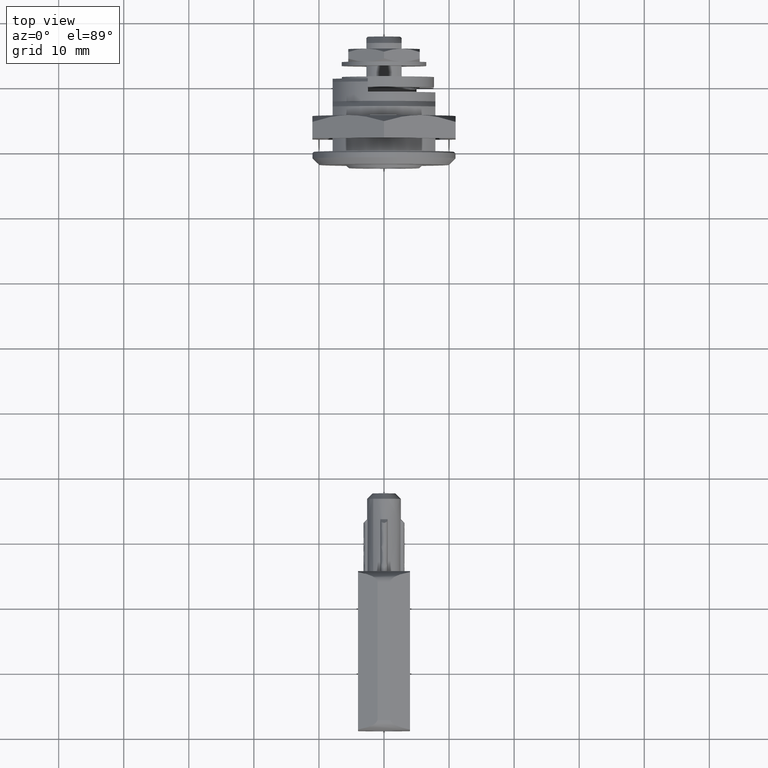
[diagram: clean part render]
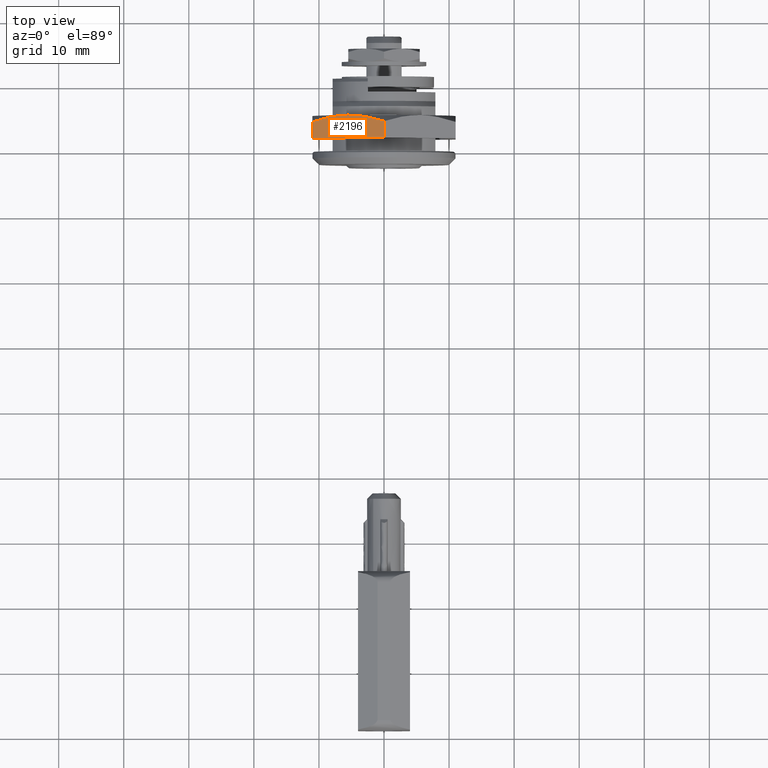
[diagram: same view with one face highlighted and labeled with its STEP entity id]
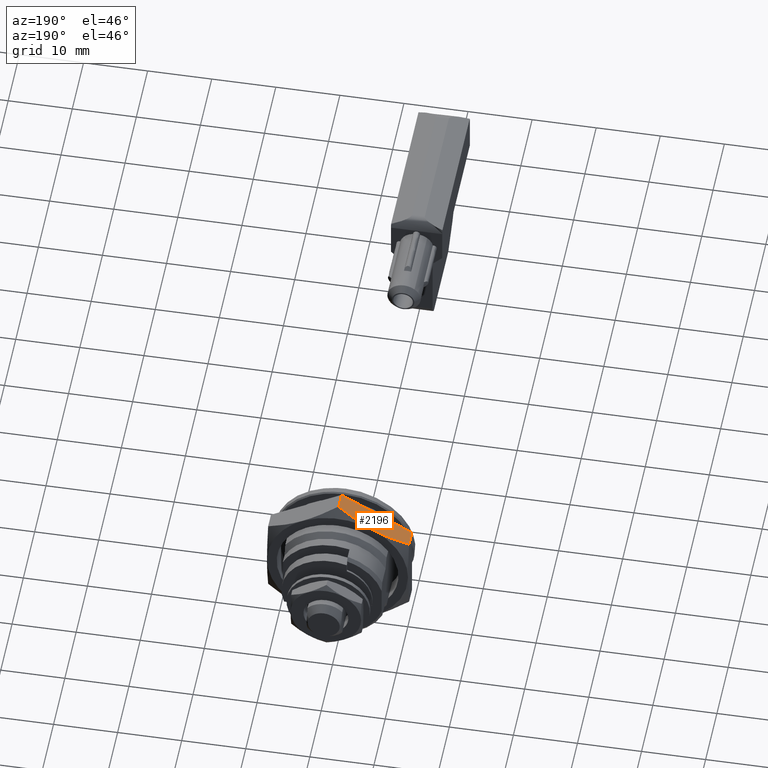
[diagram: same view with one face highlighted and labeled with its STEP entity id]
A machine part, top view. The second image highlights one B-rep face of the part: STEP entity #2196.
A second angle (auxiliary view) of the same face is appended — the face is thin or edge-on in the first view.
In plain terms, the highlighted face is a freeform B-spline surface patch.
Its self-contained STEP definition (entity closure, byte-faithful):
#1654=CARTESIAN_POINT('',(-5.499999999999550,5.500000000000000,9.526279441629310));
#1655=VERTEX_POINT('',#1654);
#1768=CARTESIAN_POINT('',(-11.0,4.517519582818508,6.350853116742620));
#1769=VERTEX_POINT('',#1768);
#1786=CARTESIAN_POINT('',(-5.499999999999550,5.500000000000000,9.526279441629310));
#1787=CARTESIAN_POINT('',(-5.730331166122903,5.499998712542535,9.393297680865997));
#1788=CARTESIAN_POINT('',(-5.961779328398152,5.494388939953133,9.259671022072961));
#1789=CARTESIAN_POINT('',(-6.426112130450008,5.471955355264328,8.991588353814782));
#1790=CARTESIAN_POINT('',(-6.659218321938091,5.454988387521730,8.857004431409392));
#1791=CARTESIAN_POINT('',(-7.356204252744289,5.387826544217539,8.454599416637105));
#1792=CARTESIAN_POINT('',(-7.817745894832551,5.321332711540713,8.188128225335262));
#1793=CARTESIAN_POINT('',(-9.194153706231187,5.064569419962943,7.393458804909657));
#1794=CARTESIAN_POINT('',(-10.100834778635701,4.817241365829538,6.869986243687839));
#1795=CARTESIAN_POINT('',(-10.999999941826740,4.517519647143509,6.350852994673635));
#1796=B_SPLINE_CURVE_WITH_KNOTS('',3,(#1786,#1787,#1788,#1789,#1790,#1791,#1792,#1793,#1794,#1795),.UNSPECIFIED.,.F.,.U.,(4,2,2,2,4),(0.500936495092734,0.562500000000000,0.625000000000000,0.750000000000000,1.0),.UNSPECIFIED.);
#1797=EDGE_CURVE('',#1655,#1769,#1796,.T.);
#2008=CARTESIAN_POINT('',(-0.000000134804140,4.517519582818508,12.701706000000019));
#2009=VERTEX_POINT('',#2008);
#2010=CARTESIAN_POINT('',(-0.000000134804140,4.517519582818508,12.701706000000019));
#2011=CARTESIAN_POINT('',(-0.898045724402450,4.816868200130699,12.183218981444041));
#2012=CARTESIAN_POINT('',(-1.802638815731810,5.063585622053715,11.660951916658030));
#2013=CARTESIAN_POINT('',(-3.173677747635066,5.319923415996016,10.869382220254330));
#2014=CARTESIAN_POINT('',(-3.633054595957559,5.386367498442453,10.604160873215900));
#2015=CARTESIAN_POINT('',(-4.557158231744345,5.476250467999869,10.070629390335350));
#2016=CARTESIAN_POINT('',(-5.021889642123952,5.499652194057042,9.802316585451845));
#2017=CARTESIAN_POINT('',(-5.492992730411779,5.499998711313566,9.530325090612841));
#2018=CARTESIAN_POINT('',(-5.496496236060388,5.499999989985604,9.528302340683510));
#2019=CARTESIAN_POINT('',(-5.500000000182592,5.499999970844577,9.526279441524379));
#2020=B_SPLINE_CURVE_WITH_KNOTS('',3,(#2010,#2011,#2012,#2013,#2014,#2015,#2016,#2017,#2018,#2019),.UNSPECIFIED.,.F.,.U.,(4,2,2,2,4),(0.0,0.250000000000000,0.375000000000000,0.500000000000000,0.500936495064190),.UNSPECIFIED.);
#2021=EDGE_CURVE('',#2009,#1655,#2020,.T.);
#2044=CARTESIAN_POINT('',(-11.0,2.0,6.350852961075090));
#2045=VERTEX_POINT('',#2044);
#2046=CARTESIAN_POINT('',(-1.000432E-011,2.0,12.701705922176600));
#2047=VERTEX_POINT('',#2046);
#2048=CARTESIAN_POINT('',(-11.0,2.0,6.350852961075090));
#2049=CARTESIAN_POINT('',(-1.000432E-011,2.0,12.701705922176600));
#2050=QUASI_UNIFORM_CURVE('',1,(#2048,#2049),.UNSPECIFIED.,.F.,.U.);
#2051=EDGE_CURVE('',#2045,#2047,#2050,.T.);
#2100=CARTESIAN_POINT('',(-11.0,4.517519582818508,6.350853116742620));
#2101=CARTESIAN_POINT('',(-11.0,2.0,6.350852961075090));
#2102=QUASI_UNIFORM_CURVE('',1,(#2100,#2101),.UNSPECIFIED.,.F.,.U.);
#2103=EDGE_CURVE('',#1769,#2045,#2102,.T.);
#2175=CARTESIAN_POINT('',(-0.000000134804140,4.517519582818508,12.701706000000019));
#2176=CARTESIAN_POINT('',(-1.000432E-011,2.0,12.701705922176600));
#2177=QUASI_UNIFORM_CURVE('',1,(#2175,#2176),.UNSPECIFIED.,.F.,.U.);
#2178=EDGE_CURVE('',#2009,#2047,#2177,.T.);
#2184=CARTESIAN_POINT('',(0.549449978674199,1.825175006783677,13.018931015266061));
#2185=CARTESIAN_POINT('',(-11.549450273728119,1.825175006783677,6.033627697644085));
#2186=CARTESIAN_POINT('',(0.549449978674199,5.674825087093637,13.018931015266061));
#2187=CARTESIAN_POINT('',(-11.549450273728119,5.674825087093637,6.033627697644085));
#2188=B_SPLINE_SURFACE_WITH_KNOTS('',1,1,((#2184,#2186),(#2185,#2187)),.UNSPECIFIED.,.F.,.F.,.U.,(2,2),(2,2),(0.0,13.970606635245350),(0.0,3.849650080309960),.UNSPECIFIED.);
#2189=ORIENTED_EDGE('',*,*,#2178,.F.);
#2190=ORIENTED_EDGE('',*,*,#2021,.T.);
#2191=ORIENTED_EDGE('',*,*,#1797,.T.);
#2192=ORIENTED_EDGE('',*,*,#2103,.T.);
#2193=ORIENTED_EDGE('',*,*,#2051,.T.);
#2194=EDGE_LOOP('',(#2189,#2190,#2191,#2192,#2193));
#2195=FACE_OUTER_BOUND('',#2194,.T.);
#2196=ADVANCED_FACE('',(#2195),#2188,.F.);